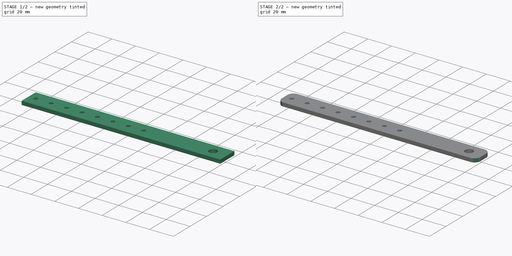
[diagram: build sequence overview — one tinted view per stage of 2, left to right]
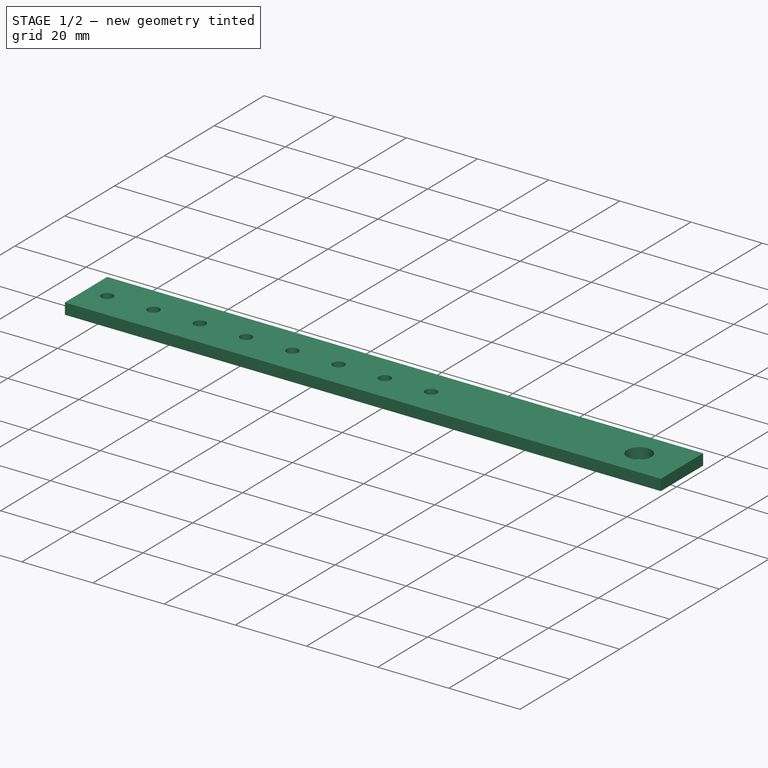
[diagram: stage 1 of 2 — iso view after this stage's code; geometry added in this stage tinted green]
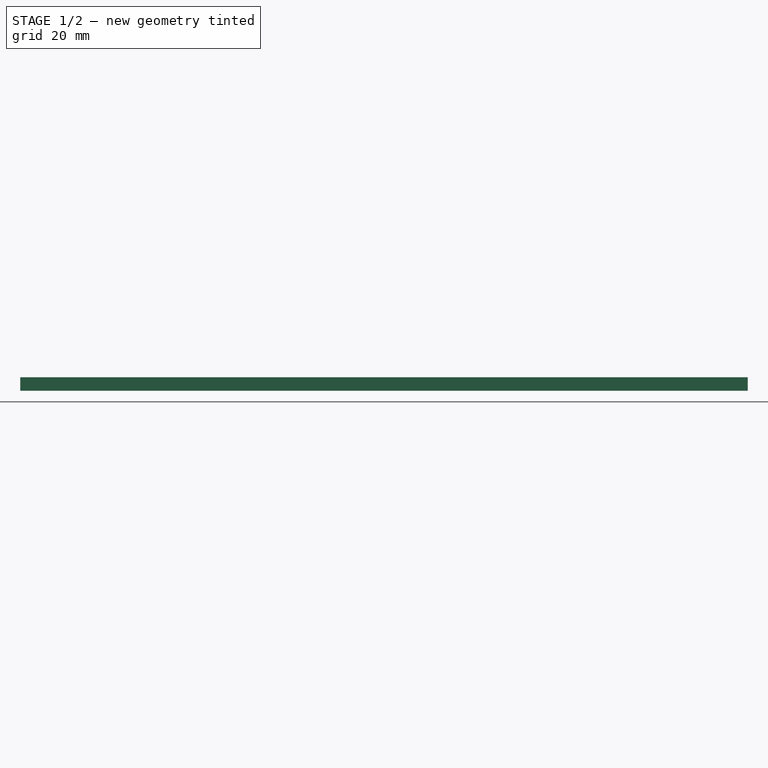
[diagram: stage 1 of 2 — front view after this stage's code; geometry added in this stage tinted green]
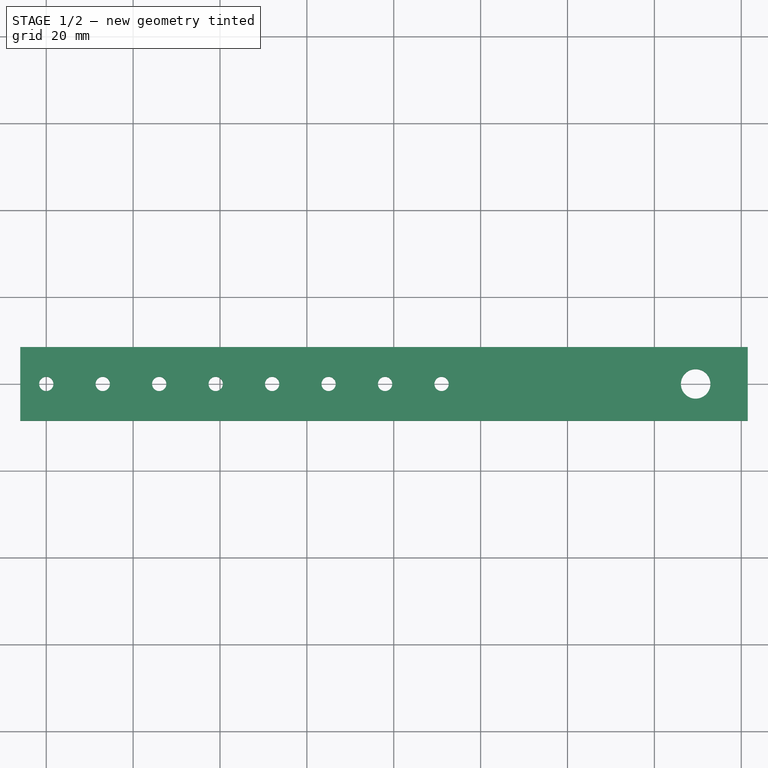
[diagram: stage 1 of 2 — top view after this stage's code; geometry added in this stage tinted green]
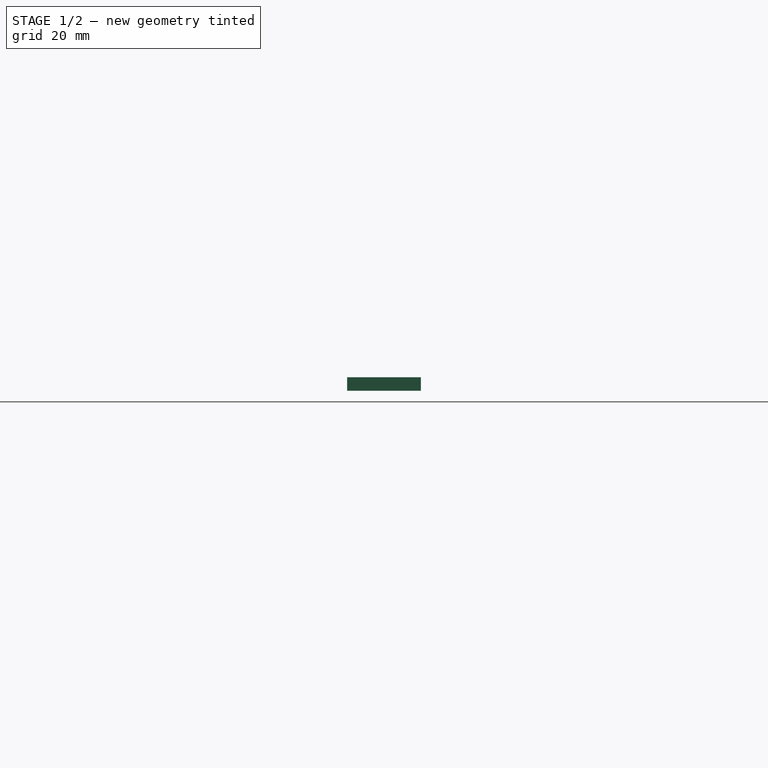
[diagram: stage 1 of 2 — right view after this stage's code; geometry added in this stage tinted green]
FCSTD DOCUMENT  (FreeCAD 1.0R39285 (Git))
Label: positive-busbar
License: All rights reserved
LicenseURL: http://en.wikipedia.org/wiki/All_rights_reserved
objects: Sketcher::SketchObject×1, PartDesign::Pad×1, PartDesign::Fillet×1, PartDesign::Body×1, Part::Part2DObjectPython×1
note: 10 computed .brp shape members not serialized (recipe doc carries the construction recipe); baked Part::Feature solids carry a one-line shape summary decoded from their .brp

FEATURE [Sketcher::SketchObject] Sketch
  ArcFitTolerance = 0
  AttachmentSupport = -> [XY_Plane]
  FullyConstrained = true
  MakeInternals = false
  MapMode = 5
  sketch-geometry (19):
    g0: LineSegment StartX=-6 StartY=8.5 StartZ=0 EndX=161.5 EndY=8.5 EndZ=0
    g1: LineSegment StartX=161.5 StartY=8.5 StartZ=0 EndX=161.5 EndY=-8.5 EndZ=0
    g2: LineSegment StartX=161.5 StartY=-8.5 StartZ=0 EndX=-6 EndY=-8.5 EndZ=0
    g3: Circle CenterX=0 CenterY=0 CenterZ=0 NormalX=0 NormalY=0 NormalZ=1 AngleXU=0 Radius=1.65
    g4: Circle CenterX=13 CenterY=0 CenterZ=0 NormalX=0 NormalY=0 NormalZ=1 AngleXU=0 Radius=1.65
    g5: Circle CenterX=26 CenterY=0 CenterZ=0 NormalX=0 NormalY=0 NormalZ=1 AngleXU=0 Radius=1.65
    g6: Circle CenterX=39 CenterY=0 CenterZ=0 NormalX=0 NormalY=0 NormalZ=1 AngleXU=0 Radius=1.65
    g7: Circle CenterX=52 CenterY=0 CenterZ=0 NormalX=0 NormalY=0 NormalZ=1 AngleXU=0 Radius=1.65
    g8: Circle CenterX=65 CenterY=0 CenterZ=0 NormalX=0 NormalY=0 NormalZ=1 AngleXU=0 Radius=1.65
    g9: Circle CenterX=91 CenterY=0 CenterZ=0 NormalX=0 NormalY=0 NormalZ=1 AngleXU=0 Radius=1.65
    g10: Circle CenterX=78 CenterY=0 CenterZ=0 NormalX=0 NormalY=0 NormalZ=1 AngleXU=0 Radius=1.65
    g11: Circle CenterX=149.5 CenterY=0 CenterZ=0 NormalX=0 NormalY=0 NormalZ=1 AngleXU=0 Radius=3.4
    g12: GeomPoint [constr] X=161.5 Y=0 Z=0
    g13: GeomPoint [constr] X=101 Y=0 Z=0
    g14: GeomPoint [constr] X=102 Y=0 Z=0
    g15: GeomPoint [constr] X=104 Y=0 Z=0
    g16: GeomPoint [constr] X=105 Y=0 Z=0
    g17: LineSegment StartX=-6 StartY=8.5 StartZ=0 EndX=-6 EndY=-8.5 EndZ=0
    g18: GeomPoint [constr] X=-6 Y=0 Z=0
  constraints (45):
    c: Coincident(g0,g1)
    c: Coincident(g1,g2)
    c: Horizontal(g0)
    c: Horizontal(g2)
    c: Vertical(g1)
    c: PointOnObject(g3,g-1)
    c: PointOnObject(g4,g-1)
    c: PointOnObject(g5,g-1)
    c: PointOnObject(g6,g-1)
    c: PointOnObject(g7,g-1)
    c: PointOnObject(g8,g-1)
    c: PointOnObject(g9,g-1)
    c: PointOnObject(g10,g-1)
    c: Diameter(g3) = 3.3
    c: Equal(g3, g4-g10) x7
    c: DistanceX(g3,g4) = 13
    c: DistanceX(g4,g5) = 13
    c: DistanceX(g5,g6) = 13
    c: DistanceX(g6,g7) = 13
    c: DistanceX(g7,g8) = 13
    c: DistanceX(g8,g10) = 13
    c: DistanceX(g10,g9) = 13
    c: PointOnObject(g11,g-1)
    c: Diameter(g11) = 6.8
    c: PointOnObject(g12,g1)
    c: PointOnObject(g12,g-1)
    c: DistanceX(g11,g12) = 12
    c: PointOnObject(g13,g-1)
    c: PointOnObject(g14,g-1)
    c: DistanceX(g13,g14) = 1
    c: PointOnObject(g15,g-1)
    c: DistanceX(g14,g15) = 2
    c: PointOnObject(g16,g-1)
    c: DistanceX(g15,g16) = 1
    c: DistanceX(g16,g11) = 44.5
    c: PointOnObject(g3,g-2)
    c: Coincident(g17,g0)
    c: Coincident(g17,g2)
    c: Vertical(g17)
    c: PointOnObject(g18,g17)
    c: DistanceX(g18) = -6
    c: DistanceY(g17,g17) = 17
    c: DistanceY(g18,g0) = 8.5
    c: PointOnObject(g18,g-1)
    c: DistanceX(g9,g13) = 10
FEATURE [PartDesign::Pad] Pad
  Direction = (0,0,1)
  Length = 3.125
  Length2 = 10
  Profile = -> Sketch
  ReferenceAxis = -> Sketch [N_Axis]
  Suppressed = false
  Type = 0
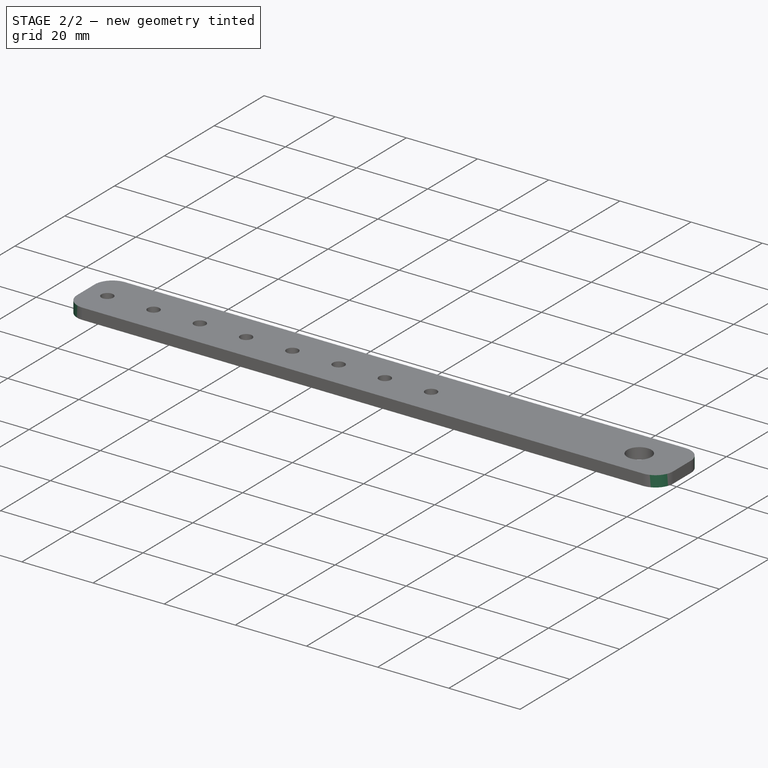
[diagram: stage 2 of 2 — iso view after this stage's code; geometry added in this stage tinted green]
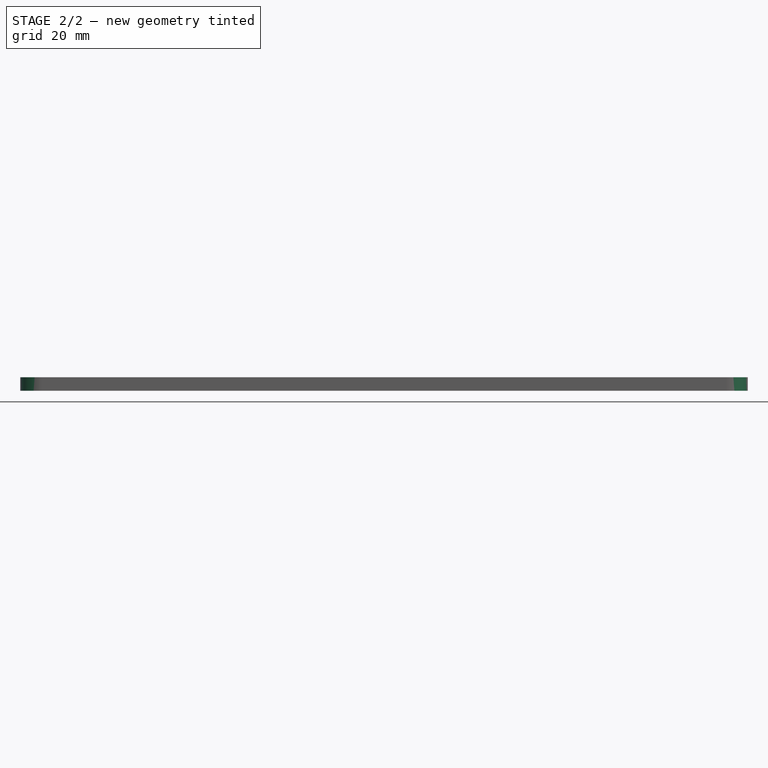
[diagram: stage 2 of 2 — front view after this stage's code; geometry added in this stage tinted green]
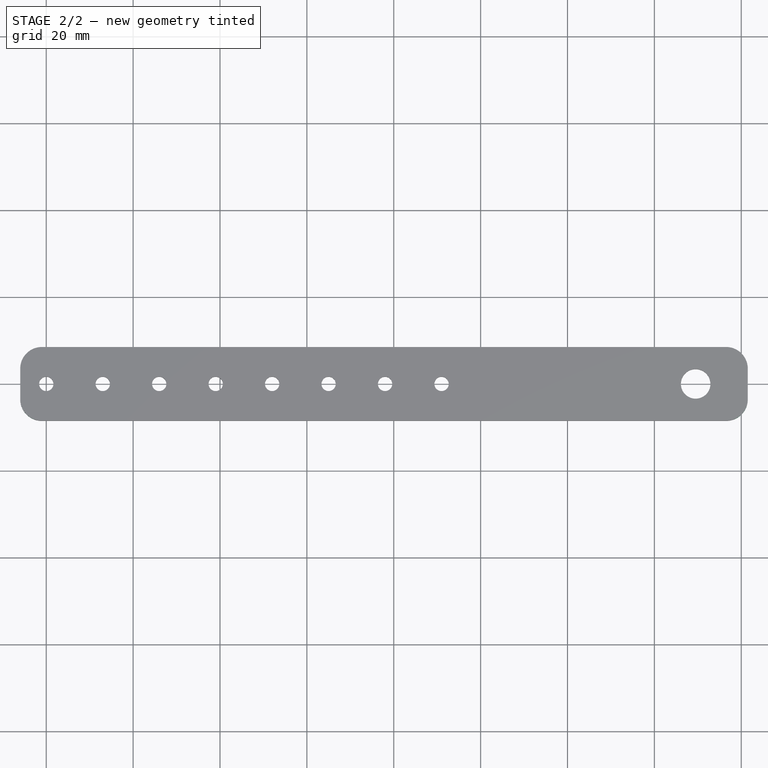
[diagram: stage 2 of 2 — top view after this stage's code; geometry added in this stage tinted green]
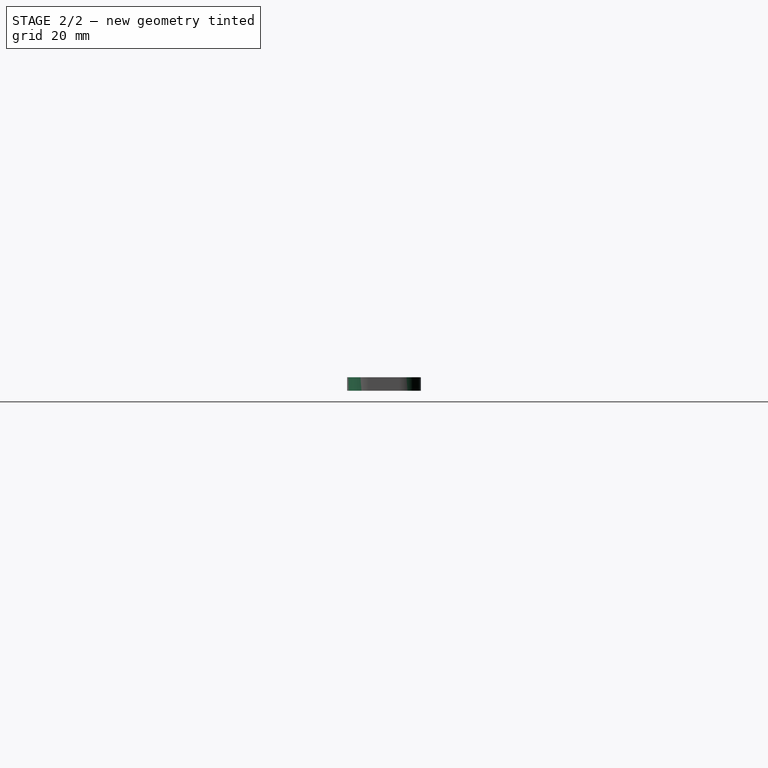
[diagram: stage 2 of 2 — right view after this stage's code; geometry added in this stage tinted green]
FEATURE [PartDesign::Fillet] Fillet
  Base = -> Pad [Edge8,Edge5,Edge2,Edge1]
  BaseFeature = -> Pad
  Radius = 5
  SupportTransform = false
  Suppressed = false
  UseAllEdges = false
FEATURE [PartDesign::Body] Body  label="busbar"
  AllowCompound = false
  Group = -> [Sketch,Pad,Fillet]
  Origin = -> Origin
  Tip = -> Fillet
FEATURE [Part::Part2DObjectPython] Shape2DView  # Draft 2D object (typed FeaturePython)
  AutoUpdate = true
  Base = -> Fillet
  Clip = false
  FaceNumbers = [4]
  FuseArch = false
  HiddenLines = false
  InPlace = true
  OnlySolids = false
  Projection = (0,0,1)
  ProjectionMode = 0
  SegmentLength = 0.05
  Tessellation = false
  VisibleOnly = false
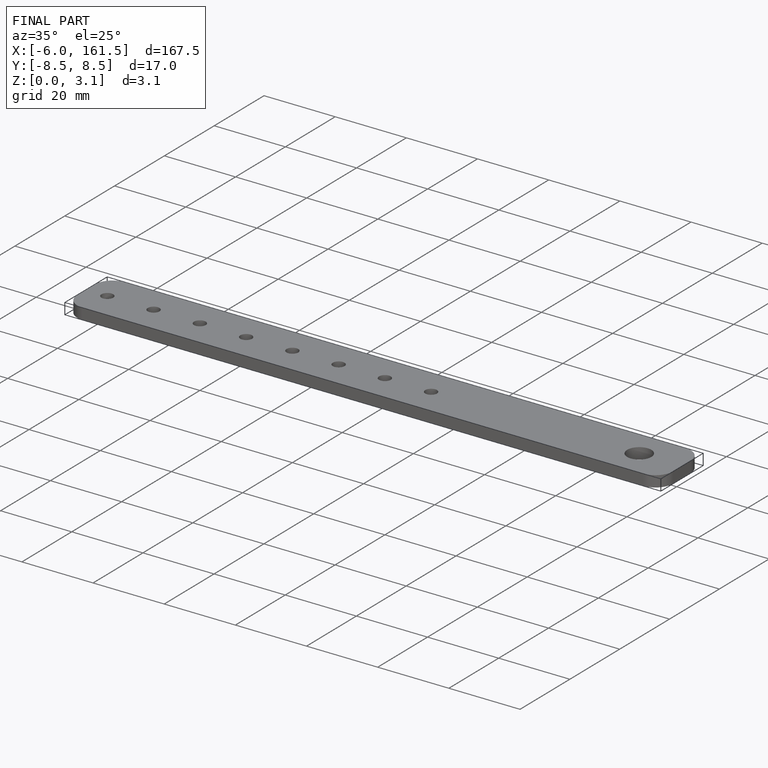
[diagram: finished part — iso view with bounding-box wireframe]
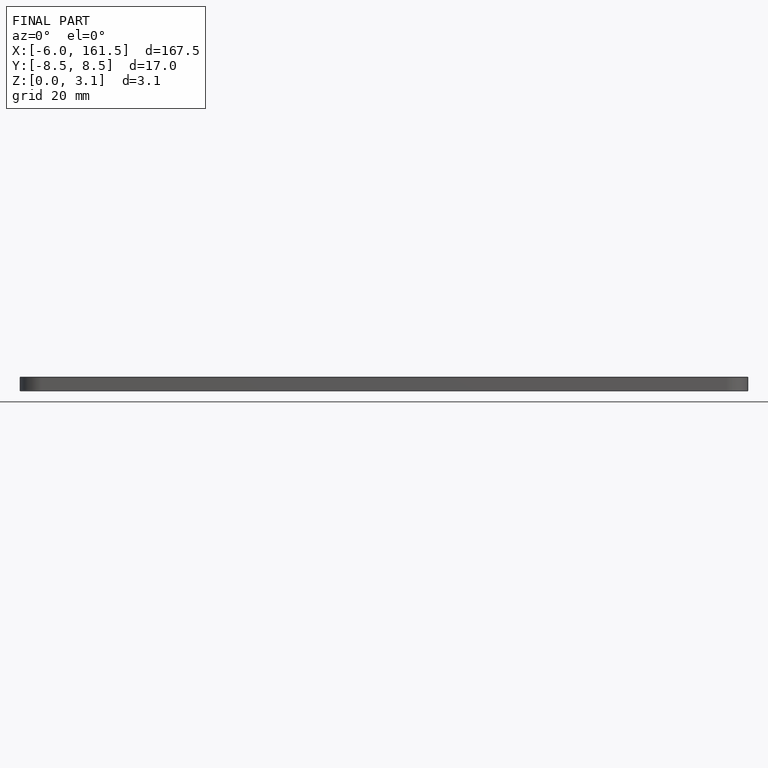
[diagram: finished part — front view with bounding-box wireframe]
